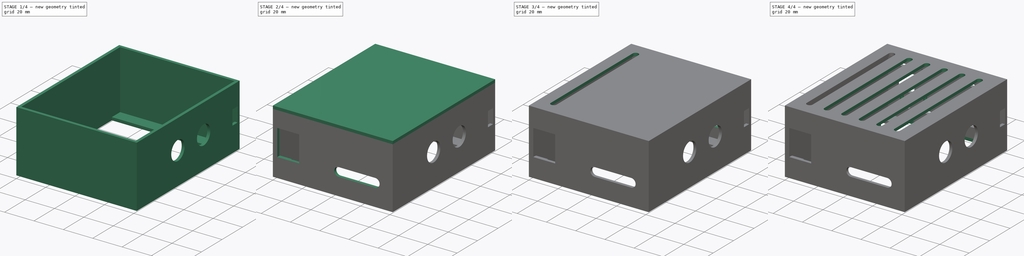
[diagram: build sequence overview — one tinted view per stage of 4, left to right]
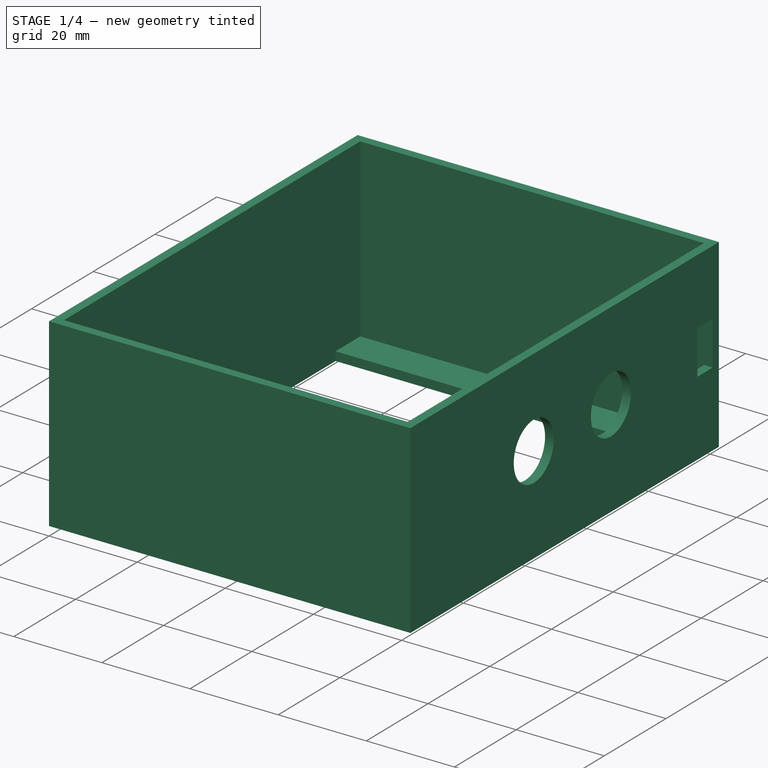
[diagram: stage 1 of 4 — iso view after this stage's code; geometry added in this stage tinted green]
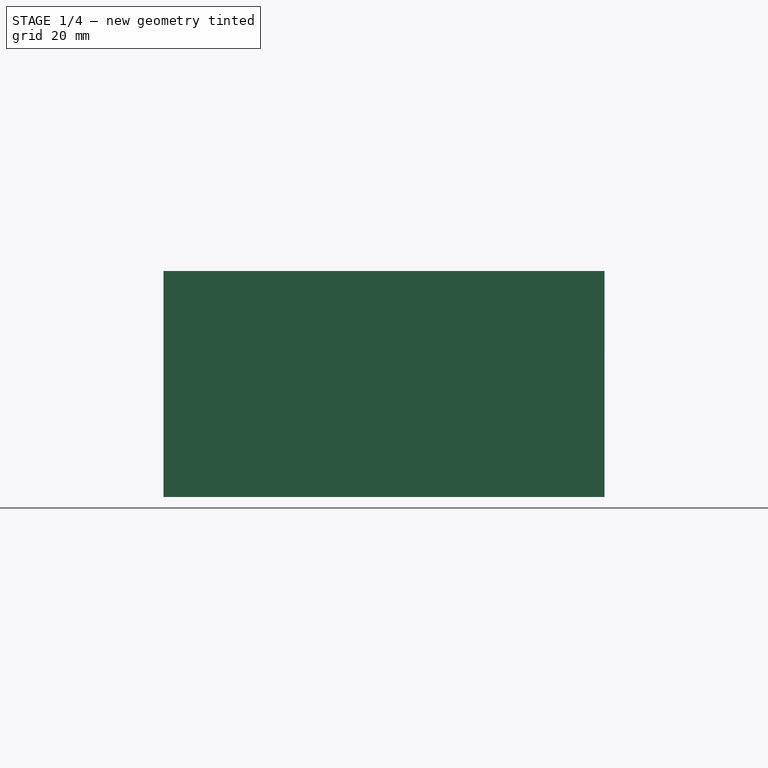
[diagram: stage 1 of 4 — front view after this stage's code; geometry added in this stage tinted green]
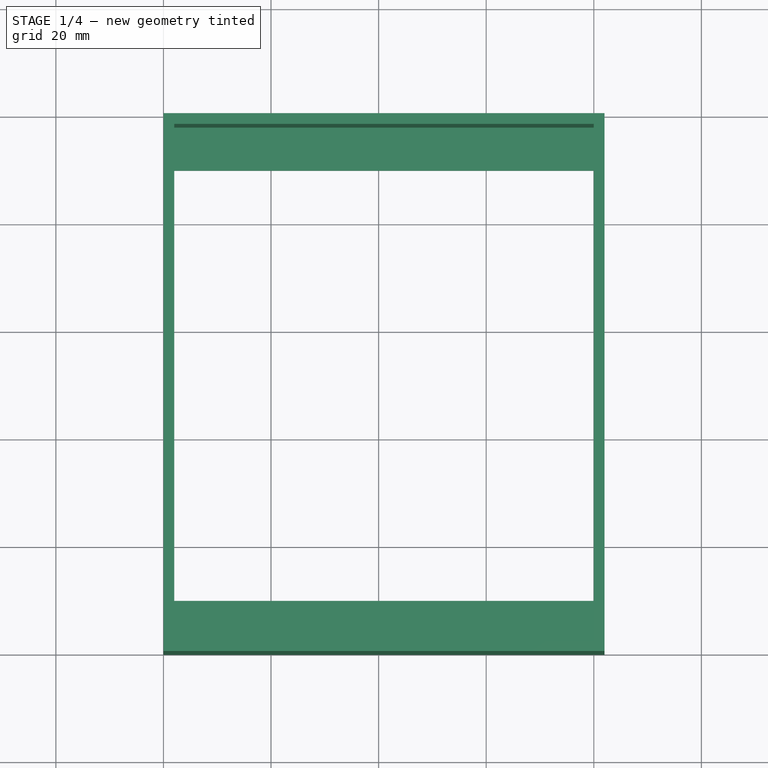
[diagram: stage 1 of 4 — top view after this stage's code; geometry added in this stage tinted green]
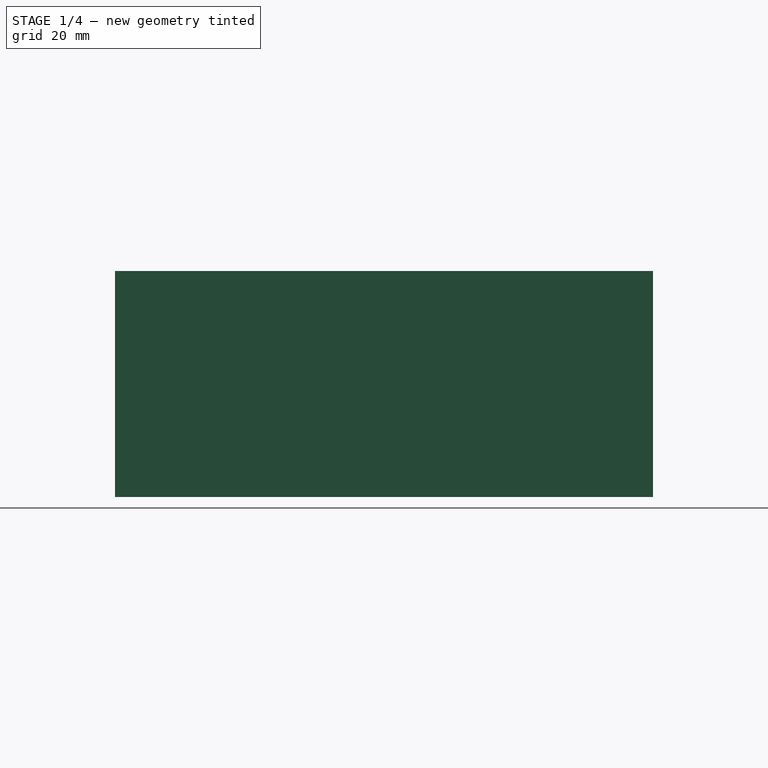
[diagram: stage 1 of 4 — right view after this stage's code; geometry added in this stage tinted green]
FCSTD DOCUMENT  (FreeCAD 0.18.4R)
Label: box_driver
License: All rights reserved
LicenseURL: http://en.wikipedia.org/wiki/All_rights_reserved
objects: Sketcher::SketchObject×11, PartDesign::Pocket×6, PartDesign::Pad×5, PartDesign::LinearPattern×2, PartDesign::Body×1
note: 36 computed .brp shape members not serialized (recipe doc carries the construction recipe); baked Part::Feature solids carry a one-line shape summary decoded from their .brp

FEATURE [Sketcher::SketchObject] Sketch
  MapMode = 5
  Support = -> [XY_Plane]
  sketch-geometry (8):
    g0: LineSegment StartX=0 StartY=-100 StartZ=0 EndX=82 EndY=-100 EndZ=0
    g1: LineSegment StartX=82 StartY=-100 StartZ=0 EndX=82 EndY=0 EndZ=0
    g2: LineSegment StartX=82 StartY=0 StartZ=0 EndX=0 EndY=0 EndZ=0
    g3: LineSegment StartX=0 StartY=0 StartZ=0 EndX=0 EndY=-100 EndZ=0
    g4: LineSegment StartX=2 StartY=-10 StartZ=0 EndX=80 EndY=-10 EndZ=0
    g5: LineSegment StartX=80 StartY=-10 StartZ=0 EndX=80 EndY=-90 EndZ=0
    g6: LineSegment StartX=80 StartY=-90 StartZ=0 EndX=2 EndY=-90 EndZ=0
    g7: LineSegment StartX=2 StartY=-90 StartZ=0 EndX=2 EndY=-10 EndZ=0
  constraints (23):
    c: Coincident(g0,g1)
    c: Coincident(g1,g2)
    c: Coincident(g2,g3)
    c: Coincident(g3,g0)
    c: Horizontal(g0)
    c: Horizontal(g2)
    c: Vertical(g1)
    c: Vertical(g3)
    c: DistanceY(g1,g1) = 100
    c: DistanceX(g2,g2) = 82
    c: Coincident(g2,g-1)
    c: Coincident(g4,g5)
    c: Coincident(g5,g6)
    c: Coincident(g6,g7)
    c: Coincident(g7,g4)
    c: Horizontal(g4)
    c: Horizontal(g6)
    c: Vertical(g5)
    c: Vertical(g7)
    c: DistanceY(g5,g5) = 80
    c: DistanceX(g4,g4) = 78
    c: DistanceX(g2,g4) = 2
    c: DistanceY(g4,g2) = 10
FEATURE [PartDesign::Pad] Pad
  Length = 2
  Length2 = 100
  Profile = -> Sketch
  Type = 0
FEATURE [Sketcher::SketchObject] Sketch001
  MapMode = 5
  Placement = pos=(0,0,2) rot=(0,0,1;0rad)
  Support = -> [Pad]
  sketch-geometry (8):
    g0: LineSegment StartX=0 StartY=0 StartZ=0 EndX=82 EndY=0 EndZ=0
    g1: LineSegment StartX=82 StartY=0 StartZ=0 EndX=82 EndY=-100 EndZ=0
    g2: LineSegment StartX=82 StartY=-100 StartZ=0 EndX=0 EndY=-100 EndZ=0
    g3: LineSegment StartX=0 StartY=-100 StartZ=0 EndX=0 EndY=0 EndZ=0
    g4: LineSegment StartX=2 StartY=-2 StartZ=0 EndX=80 EndY=-2 EndZ=0
    g5: LineSegment StartX=80 StartY=-2 StartZ=0 EndX=80 EndY=-98 EndZ=0
    g6: LineSegment StartX=80 StartY=-98 StartZ=0 EndX=2 EndY=-98 EndZ=0
    g7: LineSegment StartX=2 StartY=-98 StartZ=0 EndX=2 EndY=-2 EndZ=0
  constraints (23):
    c: Coincident(g0,g1)
    c: Coincident(g1,g2)
    c: Coincident(g2,g3)
    c: Coincident(g3,g0)
    c: Horizontal(g0)
    c: Horizontal(g2)
    c: Vertical(g1)
    c: Vertical(g3)
    c: DistanceY(g1,g1) = 100
    c: Coincident(g0,g-1)
    c: DistanceX(g0,g0) = 82
    c: Coincident(g4,g5)
    c: Coincident(g5,g6)
    c: Coincident(g6,g7)
    c: Coincident(g7,g4)
    c: Horizontal(g4)
    c: Horizontal(g6)
    c: Vertical(g5)
    c: Vertical(g7)
    c: DistanceX(g0,g4) = 2
    c: DistanceY(g4,g0) = 2
    c: DistanceY(g5,g5) = 96
    c: DistanceX(g4,g4) = 78
FEATURE [PartDesign::Pad] Pad001
  BaseFeature = -> Pad
  Length = 40
  Length2 = 100
  Profile = -> Sketch001
  Type = 0
FEATURE [Sketcher::SketchObject] Sketch002
  MapMode = 5
  Placement = pos=(82,0,0) rot=(0.57735,0.57735,0.57735;2.0944rad)
  Support = -> [Pad001]
  sketch-geometry (6):
    g0: Circle CenterX=-60 CenterY=22 CenterZ=0 NormalX=0 NormalY=0 NormalZ=1 AngleXU=0 Radius=6.5
    g1: Circle CenterX=-35 CenterY=22 CenterZ=0 NormalX=0 NormalY=0 NormalZ=1 AngleXU=0 Radius=6.5
    g2: LineSegment StartX=-7 StartY=27 StartZ=0 EndX=-2 EndY=27 EndZ=0
    g3: LineSegment StartX=-2 StartY=27 StartZ=0 EndX=-2 EndY=17 EndZ=0
    g4: LineSegment StartX=-2 StartY=17 StartZ=0 EndX=-7 EndY=17 EndZ=0
    g5: LineSegment StartX=-7 StartY=17 StartZ=0 EndX=-7 EndY=27 EndZ=0
  constraints (18):
    c: Radius(g1) = 6.5
    c: Equal(g1,g0)
    c: DistanceX(g0,g1) = 25
    c: Horizontal(g1,g0)
    c: DistanceX(g1,g-1) = 35
    c: DistanceY(g-1,g1) = 22
    c: Coincident(g2,g3)
    c: Coincident(g3,g4)
    c: Coincident(g4,g5)
    c: Coincident(g5,g2)
    c: Horizontal(g2)
    c: Horizontal(g4)
    c: Vertical(g3)
    c: Vertical(g5)
    c: DistanceY(g3,g3) = 10
    c: DistanceX(g2,g2) = 5
    c: DistanceY(g-1,g3) = 17
    c: DistanceX(g3,g-1) = 2
FEATURE [PartDesign::Pocket] Pocket
  BaseFeature = -> Pad001
  Length = 5
  Length2 = 100
  Profile = -> Sketch002
  Type = 0
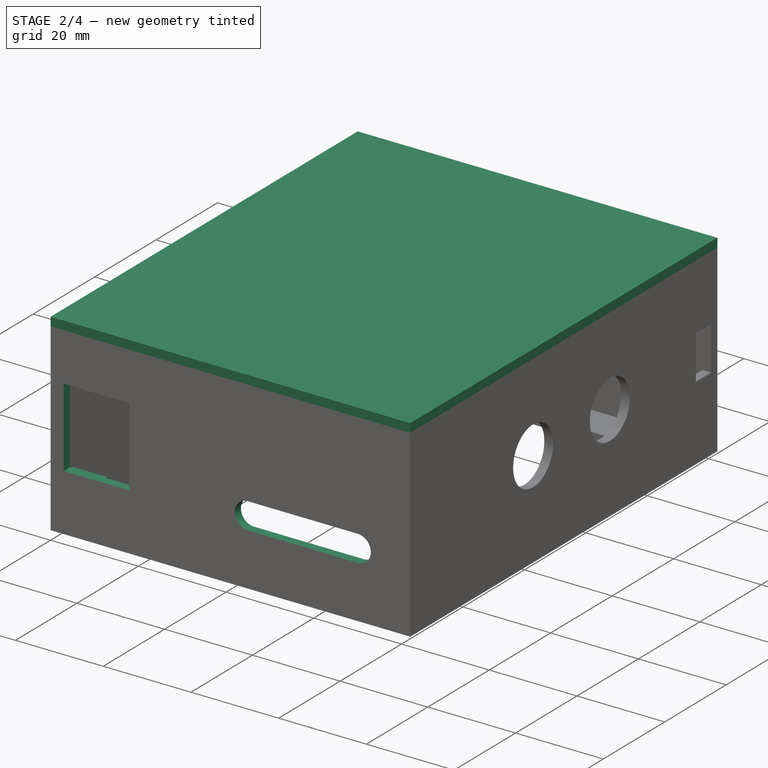
[diagram: stage 2 of 4 — iso view after this stage's code; geometry added in this stage tinted green]
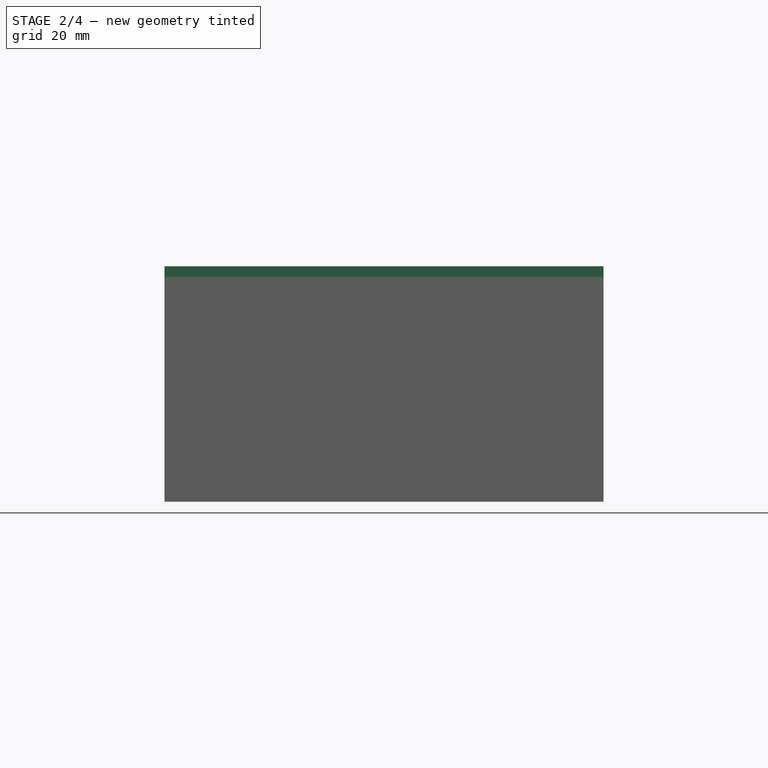
[diagram: stage 2 of 4 — front view after this stage's code; geometry added in this stage tinted green]
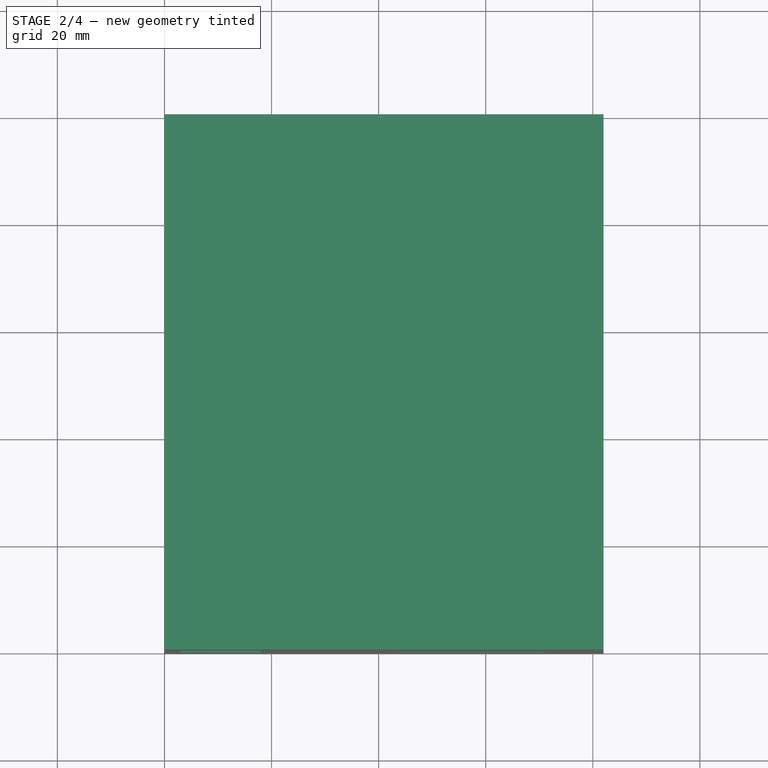
[diagram: stage 2 of 4 — top view after this stage's code; geometry added in this stage tinted green]
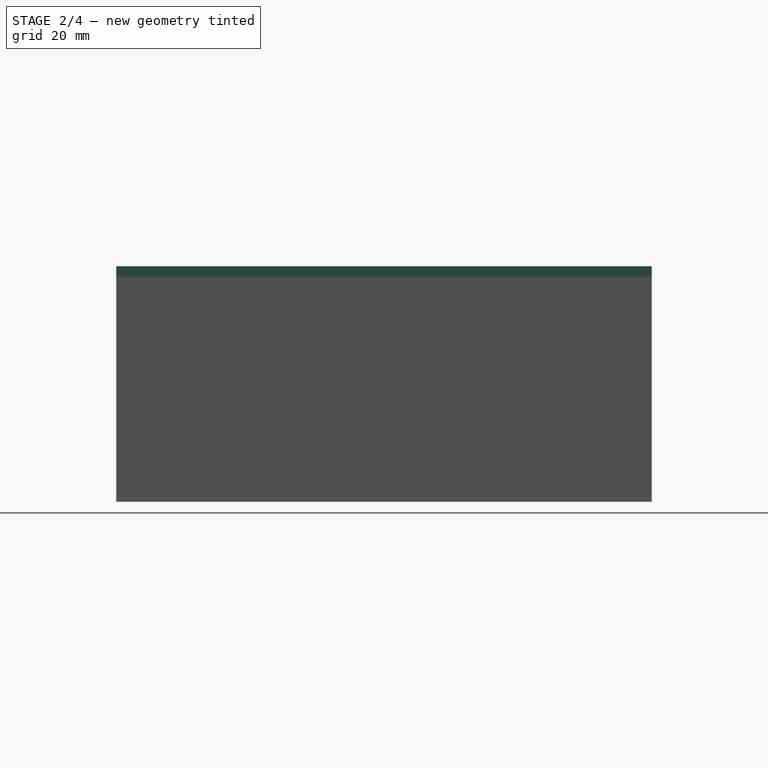
[diagram: stage 2 of 4 — right view after this stage's code; geometry added in this stage tinted green]
FEATURE [Sketcher::SketchObject] Sketch003
  MapMode = 5
  Placement = pos=(0,0,42) rot=(0,0,1;0rad)
  Support = -> [Pocket]
  sketch-geometry (4):
    g0: LineSegment StartX=0 StartY=0 StartZ=0 EndX=82 EndY=0 EndZ=0
    g1: LineSegment StartX=82 StartY=0 StartZ=0 EndX=82 EndY=-100 EndZ=0
    g2: LineSegment StartX=82 StartY=-100 StartZ=0 EndX=0 EndY=-100 EndZ=0
    g3: LineSegment StartX=0 StartY=-100 StartZ=0 EndX=0 EndY=0 EndZ=0
  constraints (11):
    c: Coincident(g0,g1)
    c: Coincident(g1,g2)
    c: Coincident(g2,g3)
    c: Coincident(g3,g0)
    c: Horizontal(g0)
    c: Horizontal(g2)
    c: Vertical(g1)
    c: Vertical(g3)
    c: DistanceY(g1,g1) = 100
    c: DistanceX(g2,g2) = 82
    c: Coincident(g0,g-1)
FEATURE [PartDesign::Pad] Pad002
  BaseFeature = -> Pocket
  Length = 2
  Length2 = 100
  Profile = -> Sketch003
  Type = 0
FEATURE [Sketcher::SketchObject] Sketch004
  MapMode = 5
  Placement = pos=(0,-100,0) rot=(1,0,0;1.5708rad)
  Support = -> [Pad002]
  sketch-geometry (8):
    g0: ArcOfCircle CenterX=45 CenterY=15 CenterZ=0 NormalX=0 NormalY=0 NormalZ=1 AngleXU=0 Radius=3 StartAngle=1.5708 EndAngle=4.71239
    g1: ArcOfCircle CenterX=70 CenterY=15 CenterZ=0 NormalX=0 NormalY=0 NormalZ=1 AngleXU=0 Radius=3 StartAngle=4.71239 EndAngle=7.85398
    g2: LineSegment StartX=45 StartY=12 StartZ=0 EndX=70 EndY=12 EndZ=0
    g3: LineSegment StartX=45 StartY=18 StartZ=0 EndX=70 EndY=18 EndZ=0
    g4: LineSegment StartX=3 StartY=31 StartZ=0 EndX=18 EndY=31 EndZ=0
    g5: LineSegment StartX=18 StartY=31 StartZ=0 EndX=18 EndY=13 EndZ=0
    g6: LineSegment StartX=18 StartY=13 StartZ=0 EndX=3 EndY=13 EndZ=0
    g7: LineSegment StartX=3 StartY=13 StartZ=0 EndX=3 EndY=31 EndZ=0
  constraints (22):
    c: Tangent(g0,g3) = 1.5708
    c: Tangent(g0,g2) = -1.5708
    c: Tangent(g2,g1) = -1.5708
    c: Tangent(g3,g1) = 1.5708
    c: Horizontal(g2)
    c: Equal(g0,g1)
    c: DistanceX(g0,g1) = 25
    c: DistanceY(g0,g0) = 3
    c: DistanceX(g-1,g1) = 70
    c: DistanceY(g-1,g1) = 15
    c: Coincident(g4,g5)
    c: Coincident(g5,g6)
    c: Coincident(g6,g7)
    c: Coincident(g7,g4)
    c: Horizontal(g4)
    c: Horizontal(g6)
    c: Vertical(g5)
    c: Vertical(g7)
    c: DistanceY(g5,g5) = 18
    c: DistanceX(g4,g4) = 15
    c: DistanceX(g-1,g6) = 3
    c: DistanceY(g-1,g6) = 13
FEATURE [PartDesign::Pocket] Pocket001
  BaseFeature = -> Pad002
  Length = 5
  Length2 = 100
  Profile = -> Sketch004
  Type = 0
FEATURE [Sketcher::SketchObject] Sketch005
  MapMode = 5
  Placement = pos=(0,0,0) rot=(0.57735,-0.57735,-0.57735;2.0944rad)
  Support = -> [Pocket001]
  sketch-geometry (2):
    g0: Circle CenterX=96 CenterY=34 CenterZ=0 NormalX=0 NormalY=0 NormalZ=1 AngleXU=0 Radius=1
    g1: Circle CenterX=96 CenterY=11 CenterZ=0 NormalX=0 NormalY=0 NormalZ=1 AngleXU=0 Radius=1
  constraints (6):
    c: Vertical(g0,g1)
    c: Radius(g0) = 1
    c: Equal(g0,g1)
    c: DistanceX(g-1,g1) = 96
    c: DistanceY(g-1,g1) = 11
    c: DistanceY(g1,g0) = 23
FEATURE [PartDesign::Pad] Pad003
  BaseFeature = -> Pocket001
  Length = 10
  Length2 = 100
  Profile = -> Sketch005
  Reversed = true
  Type = 0
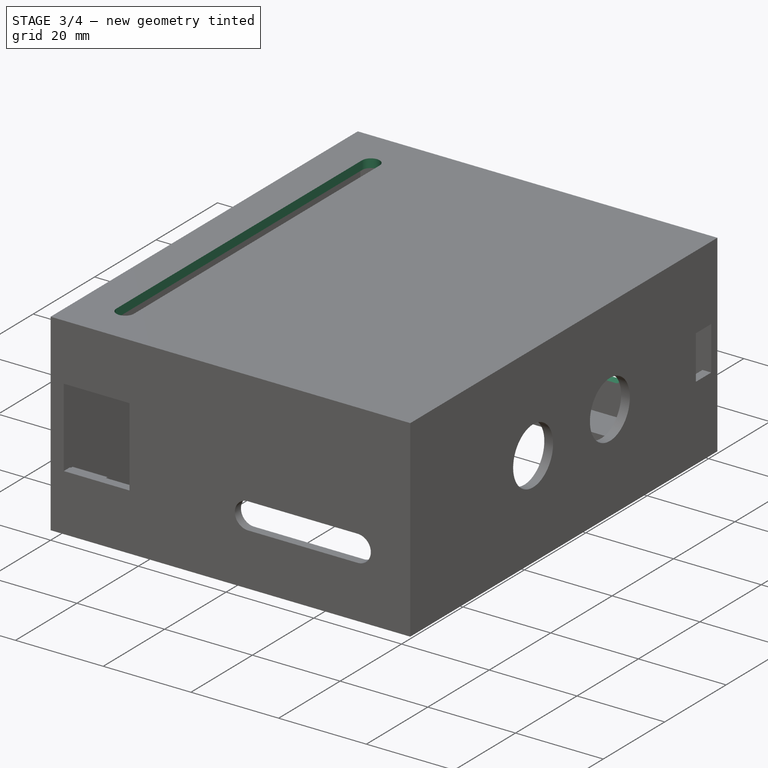
[diagram: stage 3 of 4 — iso view after this stage's code; geometry added in this stage tinted green]
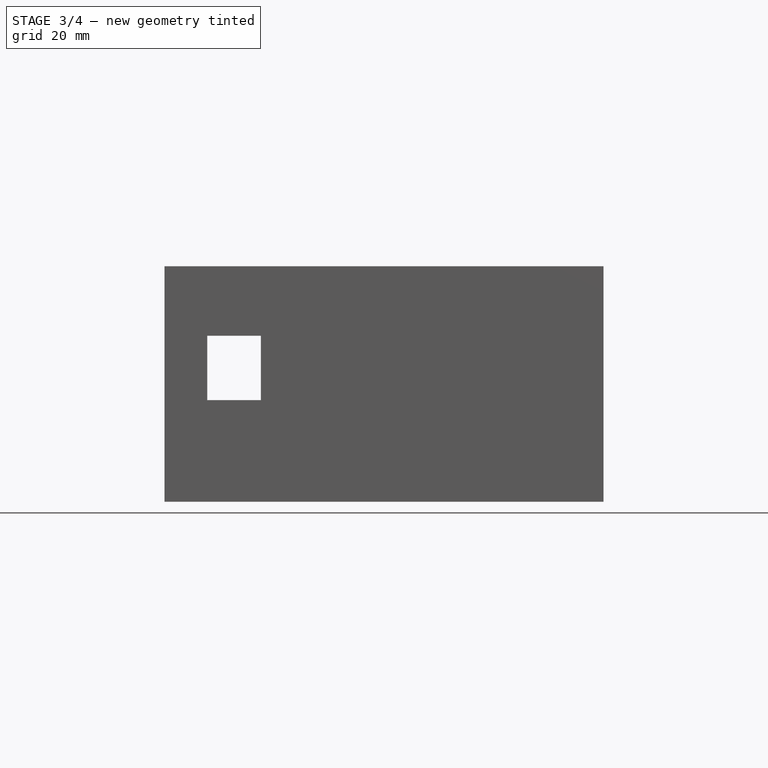
[diagram: stage 3 of 4 — front view after this stage's code; geometry added in this stage tinted green]
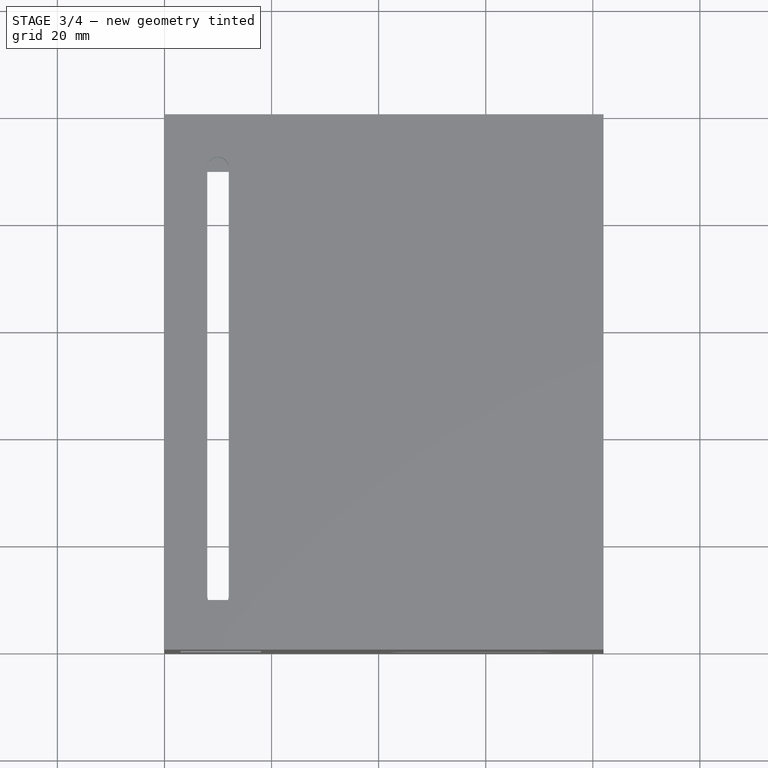
[diagram: stage 3 of 4 — top view after this stage's code; geometry added in this stage tinted green]
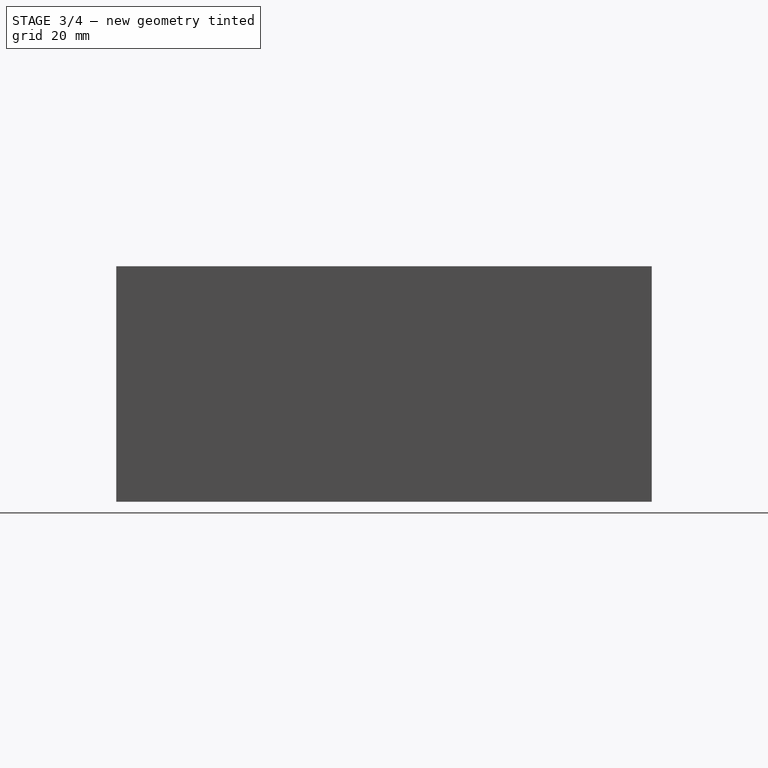
[diagram: stage 3 of 4 — right view after this stage's code; geometry added in this stage tinted green]
FEATURE [Sketcher::SketchObject] Sketch006
  MapMode = 5
  Placement = pos=(0,0,0) rot=(0,0.707107,0.707107;3.14159rad)
  Support = -> [Pad003]
  sketch-geometry (8):
    g0: ArcOfCircle CenterX=-75 CenterY=10 CenterZ=0 NormalX=0 NormalY=0 NormalZ=1 AngleXU=0 Radius=1 StartAngle=1.5708 EndAngle=4.71239
    g1: ArcOfCircle CenterX=-70 CenterY=10 CenterZ=0 NormalX=0 NormalY=0 NormalZ=1 AngleXU=0 Radius=1 StartAngle=4.71239 EndAngle=7.85398
    g2: LineSegment StartX=-75 StartY=9 StartZ=0 EndX=-70 EndY=9 EndZ=0
    g3: LineSegment StartX=-75 StartY=11 StartZ=0 EndX=-70 EndY=11 EndZ=0
    g4: ArcOfCircle CenterX=-75 CenterY=35 CenterZ=0 NormalX=0 NormalY=0 NormalZ=1 AngleXU=0 Radius=1 StartAngle=1.5708 EndAngle=4.71239
    g5: ArcOfCircle CenterX=-70 CenterY=35 CenterZ=0 NormalX=0 NormalY=0 NormalZ=1 AngleXU=0 Radius=1 StartAngle=4.71239 EndAngle=7.85398
    g6: LineSegment StartX=-75 StartY=34 StartZ=0 EndX=-70 EndY=34 EndZ=0
    g7: LineSegment StartX=-75 StartY=36 StartZ=0 EndX=-70 EndY=36 EndZ=0
  constraints (20):
    c: Tangent(g0,g3) = 1.5708
    c: Tangent(g0,g2) = -1.5708
    c: Tangent(g2,g1) = -1.5708
    c: Tangent(g3,g1) = 1.5708
    c: Horizontal(g2)
    c: Equal(g0,g1)
    c: DistanceY(g1,g1) = 1
    c: DistanceX(g0,g1) = 5
    c: DistanceY(g-1,g1) = 10
    c: DistanceX(g1,g-1) = 70
    c: Tangent(g4,g7) = 1.5708
    c: Tangent(g4,g6) = -1.5708
    c: Tangent(g6,g5) = -1.5708
    c: Tangent(g7,g5) = 1.5708
    c: Horizontal(g6)
    c: Equal(g4,g5)
    c: Equal(g1,g5) = 1
    c: DistanceX(g4,g5) = 5
    c: Vertical(g5,g1)
    c: DistanceY(g1,g5) = 25
FEATURE [PartDesign::Pocket] Pocket002
  BaseFeature = -> Pad003
  Length = 5
  Length2 = 100
  Profile = -> Sketch006
  Type = 0
FEATURE [PartDesign::LinearPattern] LinearPattern
  BaseFeature = -> Pocket002
  Direction = -> Sketch006 [H_Axis]
  Length = 59
  Occurrences = 5
  Originals = -> [Pocket002]
FEATURE [Sketcher::SketchObject] Sketch007
  MapMode = 5
  Placement = pos=(0,0,0) rot=(0,0.707107,0.707107;3.14159rad)
  Support = -> [LinearPattern]
  sketch-geometry (4):
    g0: LineSegment StartX=-20 StartY=31 StartZ=0 EndX=-8 EndY=31 EndZ=0
    g1: LineSegment StartX=-8 StartY=31 StartZ=0 EndX=-8 EndY=19 EndZ=0
    g2: LineSegment StartX=-8 StartY=19 StartZ=0 EndX=-20 EndY=19 EndZ=0
    g3: LineSegment StartX=-20 StartY=19 StartZ=0 EndX=-20 EndY=31 EndZ=0
  constraints (12):
    c: Coincident(g0,g1)
    c: Coincident(g1,g2)
    c: Coincident(g2,g3)
    c: Coincident(g3,g0)
    c: Horizontal(g0)
    c: Horizontal(g2)
    c: Vertical(g1)
    c: Vertical(g3)
    c: DistanceY(g1,g1) = 12
    c: DistanceX(g0,g0) = 12
    c: DistanceY(g-1,g1) = 19
    c: DistanceX(g1,g-1) = 8
FEATURE [PartDesign::Pocket] Pocket003
  BaseFeature = -> LinearPattern
  Length = 5
  Length2 = 100
  Profile = -> Sketch007
  Type = 0
FEATURE [Sketcher::SketchObject] Sketch008
  MapMode = 5
  Placement = pos=(0,0,44) rot=(0,0,1;0rad)
  Support = -> [Pocket003]
  sketch-geometry (4):
    g0: ArcOfCircle CenterX=10 CenterY=-10 CenterZ=0 NormalX=0 NormalY=0 NormalZ=1 AngleXU=0 Radius=2 StartAngle=2e-16 EndAngle=3.14159
    g1: ArcOfCircle CenterX=10 CenterY=-90 CenterZ=0 NormalX=0 NormalY=0 NormalZ=1 AngleXU=0 Radius=2 StartAngle=3.14159 EndAngle=6.28319
    g2: LineSegment StartX=8 StartY=-10 StartZ=0 EndX=8 EndY=-90 EndZ=0
    g3: LineSegment StartX=12 StartY=-10 StartZ=0 EndX=12 EndY=-90 EndZ=0
  constraints (10):
    c: Tangent(g0,g3) = 1.5708
    c: Tangent(g0,g2) = -1.5708
    c: Tangent(g2,g1) = -1.5708
    c: Tangent(g3,g1) = 1.5708
    c: Vertical(g2)
    c: Equal(g0,g1)
    c: DistanceX(g-1,g0) = 10
    c: DistanceX(g0,g0) = 2
    c: DistanceY(g0,g-1) = 10
    c: DistanceY(g1,g0) = 80
FEATURE [PartDesign::Pocket] Pocket004
  BaseFeature = -> Pocket003
  Length = 5
  Length2 = 100
  Profile = -> Sketch008
  Type = 0
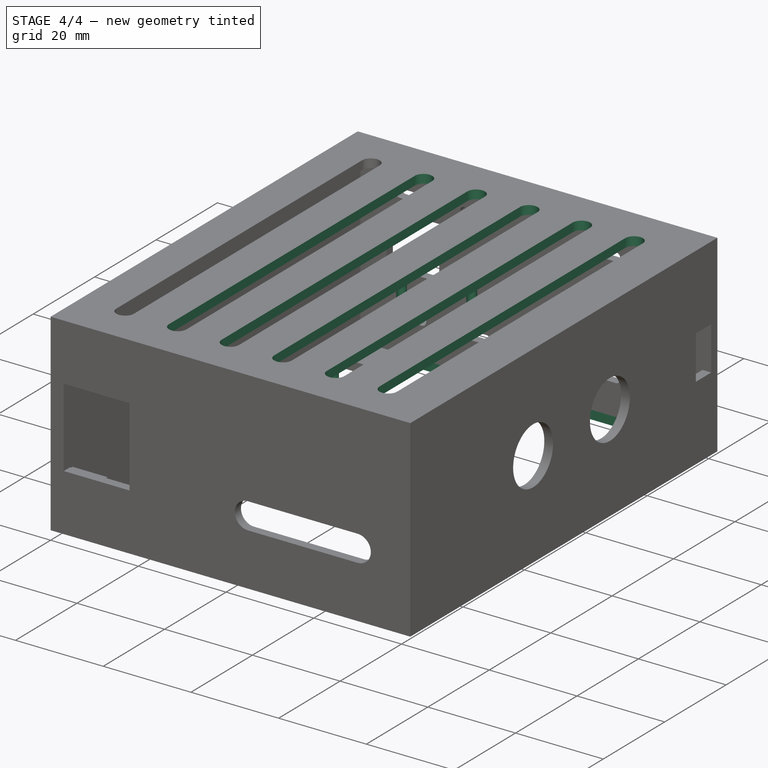
[diagram: stage 4 of 4 — iso view after this stage's code; geometry added in this stage tinted green]
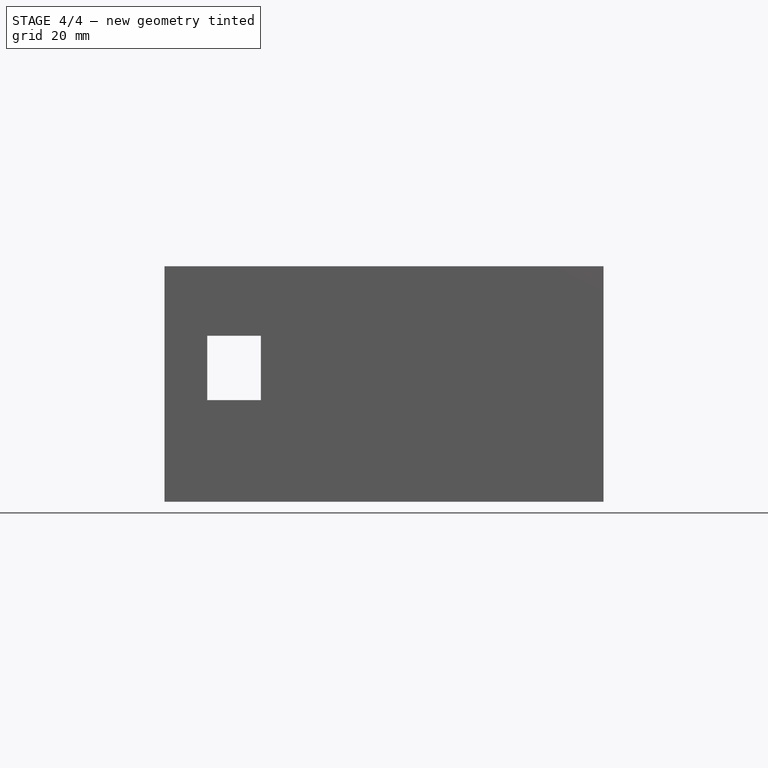
[diagram: stage 4 of 4 — front view after this stage's code; geometry added in this stage tinted green]
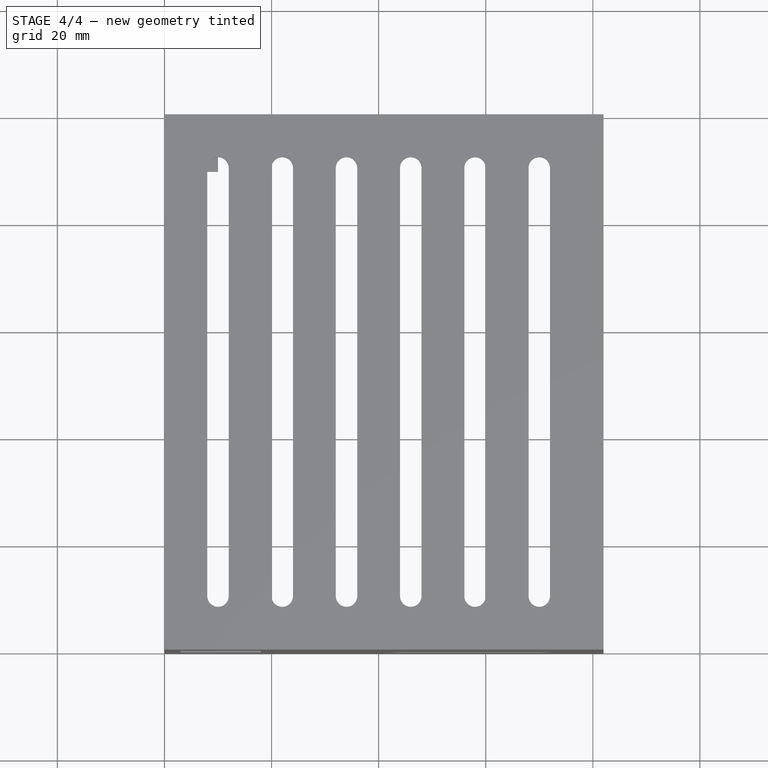
[diagram: stage 4 of 4 — top view after this stage's code; geometry added in this stage tinted green]
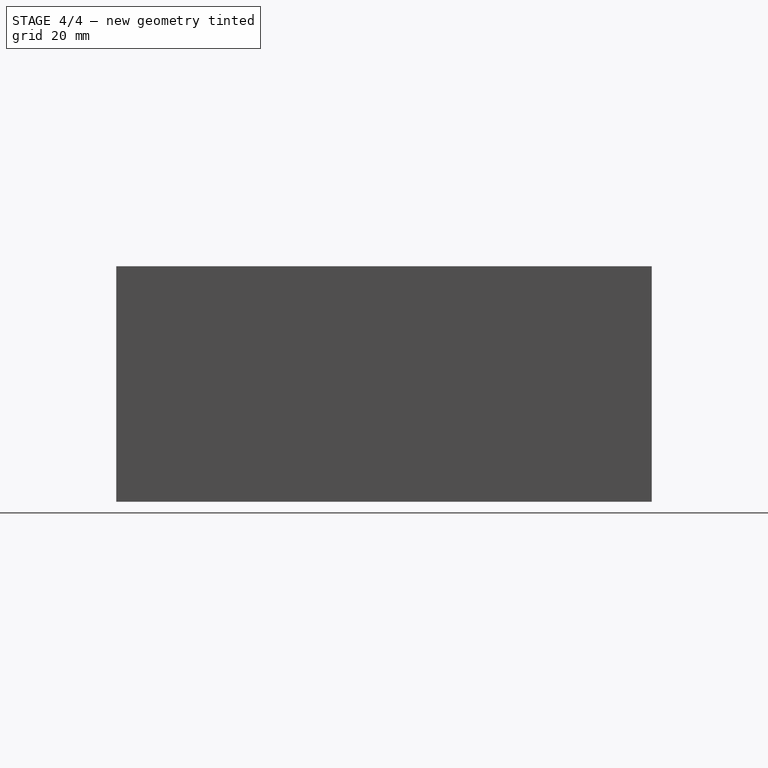
[diagram: stage 4 of 4 — right view after this stage's code; geometry added in this stage tinted green]
FEATURE [PartDesign::LinearPattern] LinearPattern001
  BaseFeature = -> Pocket004
  Direction = -> Sketch008 [H_Axis]
  Length = 60
  Occurrences = 6
  Originals = -> [Pocket004]
FEATURE [Sketcher::SketchObject] Sketch009
  MapMode = 5
  Placement = pos=(0,0,44) rot=(0,0,1;0rad)
  Support = -> [LinearPattern001]
  sketch-geometry (4):
    g0: Circle CenterX=54 CenterY=-40 CenterZ=0 NormalX=0 NormalY=0 NormalZ=1 AngleXU=0 Radius=1
    g1: Circle CenterX=38 CenterY=-40 CenterZ=0 NormalX=0 NormalY=0 NormalZ=1 AngleXU=0 Radius=1
    g2: Circle CenterX=38 CenterY=-85 CenterZ=0 NormalX=0 NormalY=0 NormalZ=1 AngleXU=0 Radius=1
    g3: Circle CenterX=54 CenterY=-85 CenterZ=0 NormalX=0 NormalY=0 NormalZ=1 AngleXU=0 Radius=1
  constraints (12):
    c: Horizontal(g0,g1)
    c: Horizontal(g3,g2)
    c: Vertical(g1,g2)
    c: Vertical(g0,g3)
    c: Radius(g0) = 1
    c: Equal(g0,g1)
    c: Equal(g0,g2)
    c: Equal(g0,g3)
    c: DistanceX(g1,g0) = 16
    c: DistanceY(g3,g0) = 45
    c: DistanceX(g-1,g1) = 38
    c: DistanceY(g1,g-1) = 40
FEATURE [PartDesign::Pad] Pad004
  BaseFeature = -> LinearPattern001
  Length = 10
  Length2 = 100
  Profile = -> Sketch009
  Reversed = true
  Type = 0
FEATURE [Sketcher::SketchObject] Sketch010
  MapMode = 5
  Placement = pos=(0,0,0) rot=(1,0,0;3.14159rad)
  Support = -> [Pad004]
  sketch-geometry (10):
    g0: Circle CenterX=4 CenterY=4 CenterZ=0 NormalX=0 NormalY=0 NormalZ=1 AngleXU=0 Radius=1.3
    g1: Circle CenterX=78 CenterY=96 CenterZ=0 NormalX=0 NormalY=0 NormalZ=1 AngleXU=0 Radius=1.3
    g2: LineSegment StartX=10 StartY=10 StartZ=0 EndX=80 EndY=10 EndZ=0
    g3: LineSegment StartX=80 StartY=10 StartZ=0 EndX=80 EndY=2 EndZ=0
    g4: LineSegment StartX=80 StartY=2 StartZ=0 EndX=10 EndY=2 EndZ=0
    g5: LineSegment StartX=10 StartY=2 StartZ=0 EndX=10 EndY=10 EndZ=0
    g6: LineSegment StartX=2 StartY=98 StartZ=0 EndX=72 EndY=98 EndZ=0
    g7: LineSegment StartX=72 StartY=98 StartZ=0 EndX=72 EndY=90 EndZ=0
    g8: LineSegment StartX=72 StartY=90 StartZ=0 EndX=2 EndY=90 EndZ=0
    g9: LineSegment StartX=2 StartY=90 StartZ=0 EndX=2 EndY=98 EndZ=0
  constraints (30):
    c: DistanceX(g-1,g0) = 4
    c: DistanceY(g-1,g0) = 4
    c: DistanceX(g-1,g1) = 78
    c: DistanceY(g-1,g1) = 96
    c: Radius(g0) = 1.3
    c: Equal(g0,g1)
    c: Coincident(g2,g3)
    c: Coincident(g3,g4)
    c: Coincident(g4,g5)
    c: Coincident(g5,g2)
    c: Horizontal(g2)
    c: Horizontal(g4)
    c: Vertical(g3)
    c: Vertical(g5)
    c: DistanceY(g-1,g4) = 2
    c: DistanceY(g5,g5) = 8
    c: DistanceX(g-1,g4) = 10
    c: DistanceX(g4,g4) = 70
    c: Coincident(g6,g7)
    c: Coincident(g7,g8)
    c: Coincident(g8,g9)
    c: Coincident(g9,g6)
    c: Horizontal(g6)
    c: Horizontal(g8)
    c: Vertical(g7)
    c: Vertical(g9)
    c: DistanceX(g-1,g8) = 2
    c: DistanceY(g-1,g8) = 90
    c: DistanceY(g9,g9) = 8
    c: DistanceX(g6,g6) = 70
FEATURE [PartDesign::Pocket] Pocket005
  BaseFeature = -> Pad004
  Length = 3
  Length2 = 100
  Profile = -> Sketch010
  Type = 0
FEATURE [PartDesign::Body] Body
  Group = -> [Sketch,Pad,Sketch001,Pad001,Sketch002,Pocket,Sketch003,Pad002,Sketch004,Pocket001,Sketch005,Pad003,Sketch006,Pocket002,LinearPattern,Sketch007,Pocket003,Sketch008,Pocket004,LinearPattern001,Sketch009,Pad004,Sketch010,Pocket005]
  Origin = -> Origin
  Tip = -> Pocket005
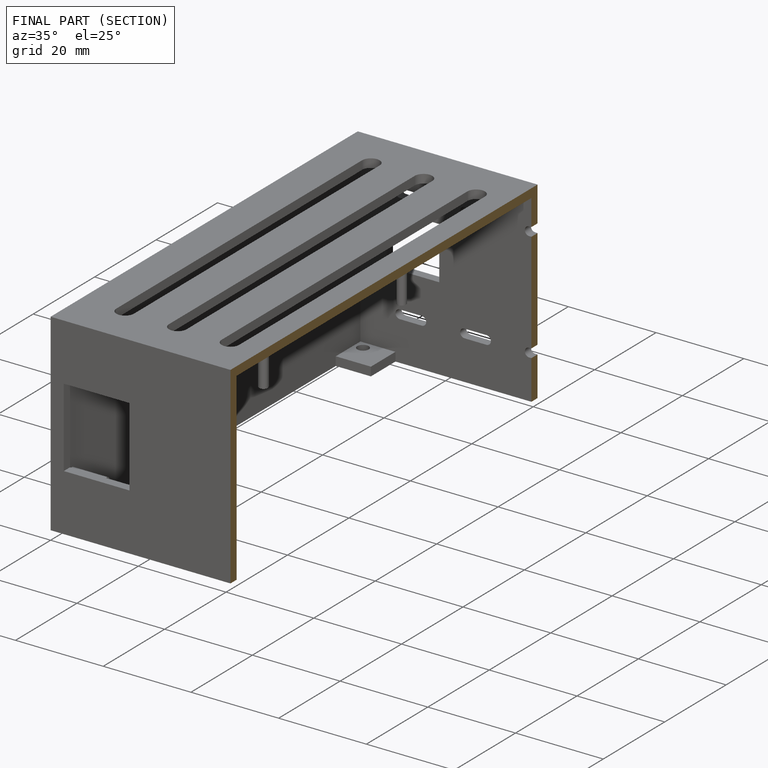
[diagram: finished part — half-section view (interior)]
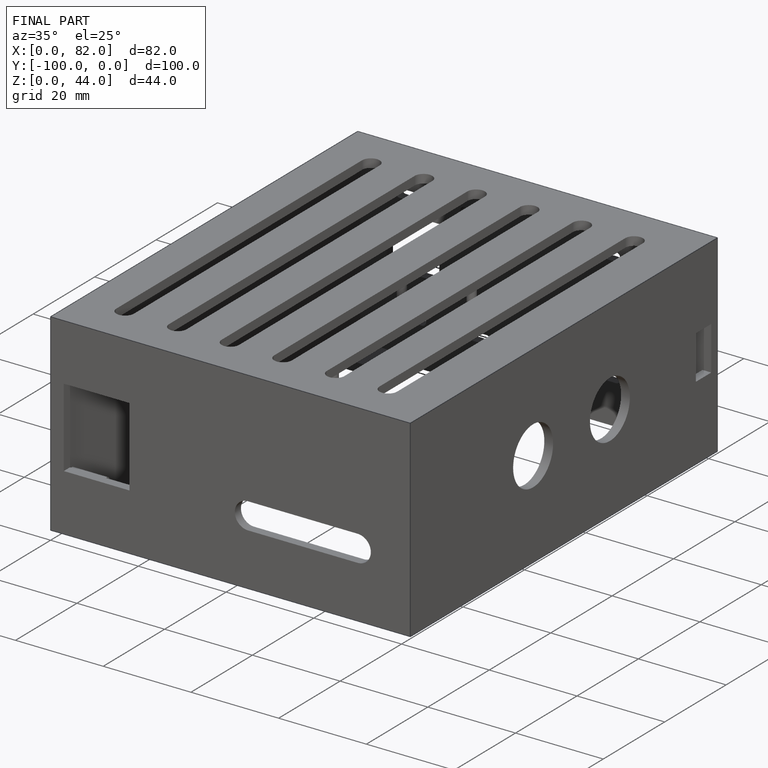
[diagram: finished part — iso view with bounding-box wireframe]
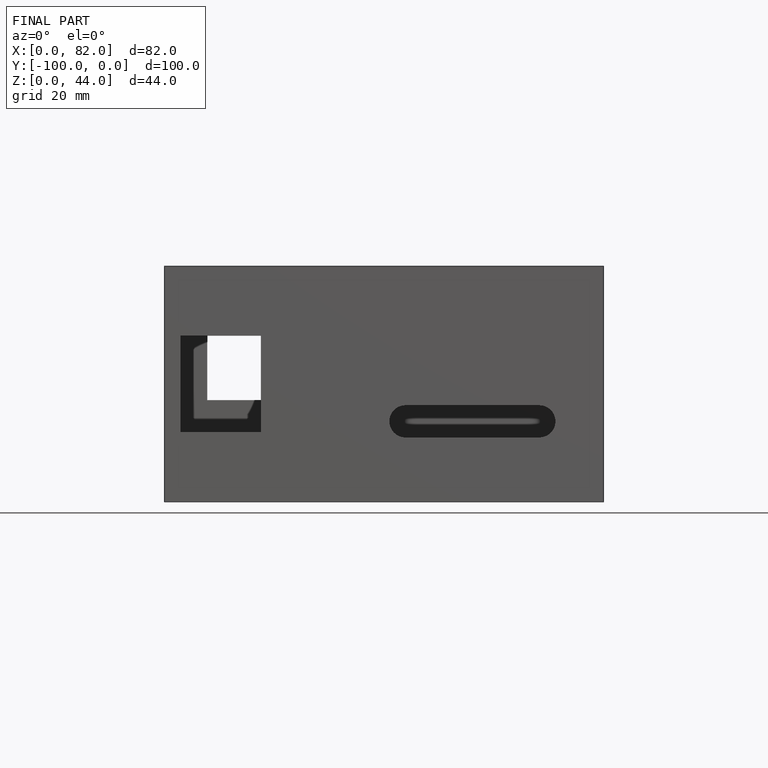
[diagram: finished part — front view with bounding-box wireframe]
